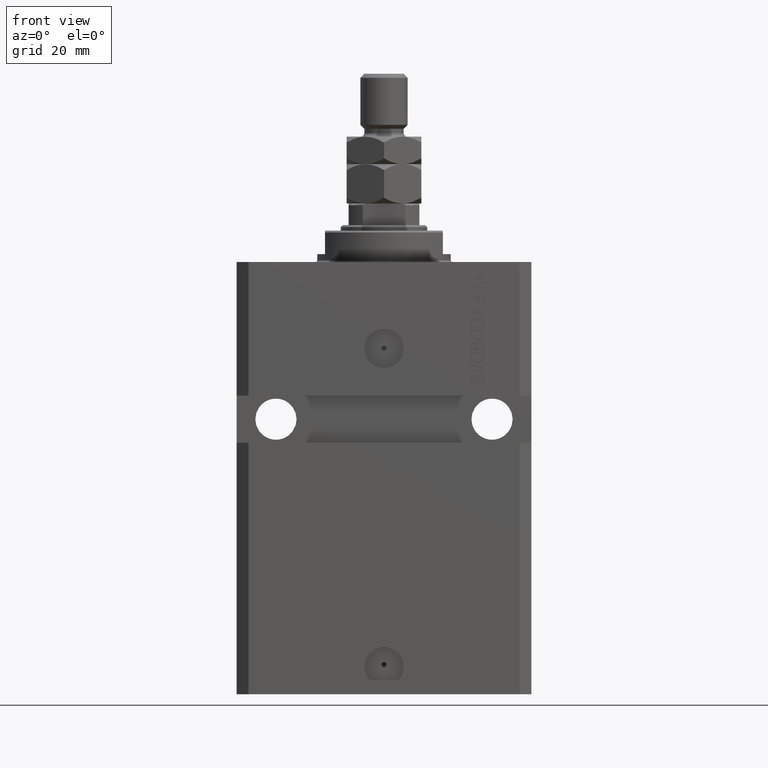
[diagram: clean part render]
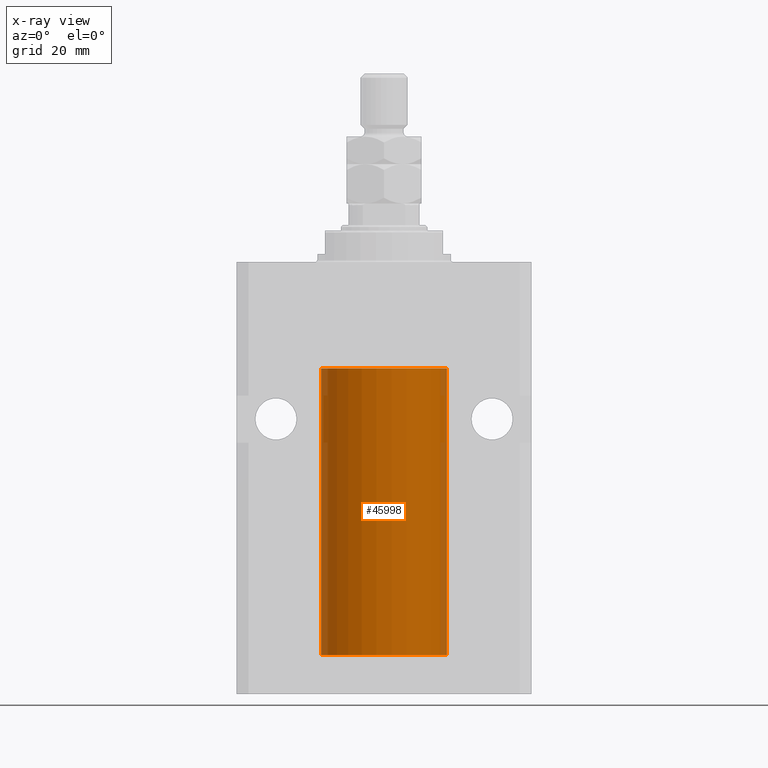
[diagram: x-ray — body ghosted, one internal face saturated and labeled with its STEP entity id]
A machine part, front view, then the same camera in x-ray: the body is ghosted and one INTERNAL B-rep face — a face not visible from any outside direction — is saturated and labeled: STEP entity #45998.
In plain terms, the highlighted cylindrical surface (partial cylindrical patch) has radius 16 mm, axis along (0, 0, 1).
Its self-contained STEP definition (entity closure, byte-faithful):
#455 = EDGE_CURVE ( 'NONE', #26120, #47132, #34312, .T. ) ;
#623 = CARTESIAN_POINT ( 'NONE',  ( 15.98778830858101685, -0.6250000000001221245, -98.00000000000000000 ) ) ;
#1171 = AXIS2_PLACEMENT_3D ( 'NONE', #20564, #21295, #28982 ) ;
#1840 = CARTESIAN_POINT ( 'NONE',  ( 15.99708487730508821, -0.3264777333248483626, -97.44266166809921970 ) ) ;
#2089 = CARTESIAN_POINT ( 'NONE',  ( 15.98778830858101685, -0.6250000000001221245, -98.00000000000000000 ) ) ;
#2118 = CARTESIAN_POINT ( 'NONE',  ( -16.00000000000013145, 3.685127046438747128E-13, -98.62500000000343903 ) ) ;
#2938 = EDGE_CURVE ( 'NONE', #43787, #46736, #38332, .T. ) ;
#3358 = VERTEX_POINT ( 'NONE', #20661 ) ;
#3389 = VECTOR ( 'NONE', #39929, 1000.000000000000000 ) ;
#4414 = CARTESIAN_POINT ( 'NONE',  ( 16.00000000000000000, 0.000000000000000000, -100.0999999999999943 ) ) ;
#4428 = CARTESIAN_POINT ( 'NONE',  ( -16.00000000000000000, 1.959434878635765131E-15, -27.10000000000000142 ) ) ;
#4446 = ORIENTED_EDGE ( 'NONE', *, *, #2938, .T. ) ;
#5146 = CARTESIAN_POINT ( 'NONE',  ( -16.00000000000000000, 1.959434878635765131E-15, -100.0999999999999943 ) ) ;
#5246 = B_SPLINE_CURVE_WITH_KNOTS ( 'NONE', 3,
 ( #2118, #39984, #9303, #6075, #21157, #36269, #12770, #27864, #9056, #24143 ),
 .UNSPECIFIED., .F., .F.,
 ( 4, 2, 2, 2, 4 ),
 ( 0.001954221322144760863, 0.002442665739568255709, 0.002931110156991750121, 0.003419554574415244966, 0.003907998991838739812 ),
 .UNSPECIFIED. ) ;
#5822 = CARTESIAN_POINT ( 'NONE',  ( -16.00000000000000000, 1.959434878635765131E-15, -100.0999999999999943 ) ) ;
#6075 = CARTESIAN_POINT ( 'NONE',  ( -15.99071965633095793, -0.5569502390237154321, -98.32709508218682970 ) ) ;
#6908 = CIRCLE ( 'NONE', #47987, 16.00000000000000000 ) ;
#7302 = CARTESIAN_POINT ( 'NONE',  ( 16.00000000000000000, 0.000000000000000000, -27.10000000000000142 ) ) ;
#7479 = DIRECTION ( 'NONE',  ( 0.000000000000000000, 0.000000000000000000, 1.000000000000000000 ) ) ;
#7560 = EDGE_CURVE ( 'NONE', #3358, #43787, #5246, .T. ) ;
#7731 = DIRECTION ( 'NONE',  ( 1.000000000000000000, 0.000000000000000000, 0.000000000000000000 ) ) ;
#8787 = EDGE_CURVE ( 'NONE', #9109, #44155, #43161, .T. ) ;
#8981 = CARTESIAN_POINT ( 'NONE',  ( 15.98778830858101685, -0.6250000000001221245, -98.00000000000000000 ) ) ;
#9056 = CARTESIAN_POINT ( 'NONE',  ( -16.00000000000000000, -0.1651602165840288794, -97.37500000000001421 ) ) ;
#9109 = VERTEX_POINT ( 'NONE', #24033 ) ;
#9252 = CARTESIAN_POINT ( 'NONE',  ( 16.00000000000000000, 0.000000000000000000, -100.0999999999999943 ) ) ;
#9303 = CARTESIAN_POINT ( 'NONE',  ( -15.99708815688950381, -0.3263115027449080552, -98.55740969198227219 ) ) ;
#10147 = CARTESIAN_POINT ( 'NONE',  ( -16.00000000000000000, 1.959434878635765131E-15, -100.0999999999999943 ) ) ;
#10883 = CIRCLE ( 'NONE', #34614, 16.00000000000000000 ) ;
#12588 = DIRECTION ( 'NONE',  ( -0.000000000000000000, -0.000000000000000000, 1.000000000000000000 ) ) ;
#12770 = CARTESIAN_POINT ( 'NONE',  ( -15.99069874693027948, -0.5575440858643423425, -97.67382425011452085 ) ) ;
#13640 = FACE_OUTER_BOUND ( 'NONE', #45057, .T. ) ;
#15102 = VECTOR ( 'NONE', #44724, 1000.000000000000000 ) ;
#16710 = VECTOR ( 'NONE', #12588, 1000.000000000000000 ) ;
#16882 = EDGE_CURVE ( 'NONE', #9109, #29149, #23501, .T. ) ;
#17905 = EDGE_CURVE ( 'NONE', #29149, #47132, #22885, .T. ) ;
#18126 = CARTESIAN_POINT ( 'NONE',  ( 0.000000000000000000, 0.000000000000000000, -27.10000000000000142 ) ) ;
#18289 = ORIENTED_EDGE ( 'NONE', *, *, #7560, .T. ) ;
#20564 = CARTESIAN_POINT ( 'NONE',  ( 0.000000000000000000, 0.000000000000000000, -100.0999999999999943 ) ) ;
#20661 = CARTESIAN_POINT ( 'NONE',  ( -16.00000000000013145, 3.685127046438747128E-13, -98.62500000000343903 ) ) ;
#20908 = DIRECTION ( 'NONE',  ( -0.000000000000000000, -0.000000000000000000, 1.000000000000000000 ) ) ;
#21157 = CARTESIAN_POINT ( 'NONE',  ( -15.98779367741636648, -0.6248626626677354912, -98.16539631985041581 ) ) ;
#21295 = DIRECTION ( 'NONE',  ( -0.000000000000000000, -0.000000000000000000, 1.000000000000000000 ) ) ;
#21871 = ORIENTED_EDGE ( 'NONE', *, *, #22080, .T. ) ;
#22080 = EDGE_CURVE ( 'NONE', #38056, #3358, #39734, .T. ) ;
#22885 = B_SPLINE_CURVE_WITH_KNOTS ( 'NONE', 3,
 ( #8981, #35226, #46370, #46608, #34976, #31264 ),
 .UNSPECIFIED., .F., .F.,
 ( 4, 2, 4 ),
 ( 0.002931623410139858662, 0.003419811200989293816, 0.003907998991838729404 ),
 .UNSPECIFIED. ) ;
#23204 = ORIENTED_EDGE ( 'NONE', *, *, #455, .F. ) ;
#23205 = CARTESIAN_POINT ( 'NONE',  ( -16.00000000000000000, -1.303459030566954747E-14, -97.37500000000000000 ) ) ;
#23501 = B_SPLINE_CURVE_WITH_KNOTS ( 'NONE', 3,
 ( #44164, #28814, #1840, #36482, #29302, #2089 ),
 .UNSPECIFIED., .F., .F.,
 ( 4, 2, 4 ),
 ( 0.001954221322144537518, 0.002442922366142198307, 0.002931623410139858662 ),
 .UNSPECIFIED. ) ;
#23970 = VECTOR ( 'NONE', #20908, 1000.000000000000000 ) ;
#24033 = CARTESIAN_POINT ( 'NONE',  ( 16.00000000000013145, 3.665532692826917502E-13, -97.37499999999657518 ) ) ;
#24143 = CARTESIAN_POINT ( 'NONE',  ( -16.00000000000000000, -1.303459030566954747E-14, -97.37500000000000000 ) ) ;
#24543 = ORIENTED_EDGE ( 'NONE', *, *, #17905, .T. ) ;
#26120 = VERTEX_POINT ( 'NONE', #4414 ) ;
#27263 = CARTESIAN_POINT ( 'NONE',  ( 16.00000000000000000, -1.835653844722709729E-15, -98.62500000000000000 ) ) ;
#27481 = ORIENTED_EDGE ( 'NONE', *, *, #16882, .T. ) ;
#27864 = CARTESIAN_POINT ( 'NONE',  ( -15.99707459521409625, -0.3269651631532106140, -97.44291848928558863 ) ) ;
#28814 = CARTESIAN_POINT ( 'NONE',  ( 16.00000000000000355, -0.1632201307031984627, -97.37499999999980105 ) ) ;
#28982 = DIRECTION ( 'NONE',  ( 1.000000000000000000, 0.000000000000000000, 0.000000000000000000 ) ) ;
#29149 = VERTEX_POINT ( 'NONE', #623 ) ;
#29302 = CARTESIAN_POINT ( 'NONE',  ( 15.98778830858102040, -0.6250000000001221245, -97.83501479319285465 ) ) ;
#29318 = CARTESIAN_POINT ( 'NONE',  ( 0.000000000000000000, 0.000000000000000000, -100.0999999999999943 ) ) ;
#30476 = ORIENTED_EDGE ( 'NONE', *, *, #34480, .T. ) ;
#31264 = CARTESIAN_POINT ( 'NONE',  ( 16.00000000000000000, -1.835653844722709729E-15, -98.62500000000000000 ) ) ;
#32303 = DIRECTION ( 'NONE',  ( 1.000000000000000000, 0.000000000000000000, 0.000000000000000000 ) ) ;
#33150 = ORIENTED_EDGE ( 'NONE', *, *, #8787, .F. ) ;
#34312 = LINE ( 'NONE', #45463, #15102 ) ;
#34480 = EDGE_CURVE ( 'NONE', #46736, #44155, #6908, .T. ) ;
#34614 = AXIS2_PLACEMENT_3D ( 'NONE', #29318, #48126, #32303 ) ;
#34976 = CARTESIAN_POINT ( 'NONE',  ( 16.00000000000000000, -0.1650734421240358518, -98.62500000000002842 ) ) ;
#34989 = EDGE_CURVE ( 'NONE', #38056, #26120, #10883, .T. ) ;
#35226 = CARTESIAN_POINT ( 'NONE',  ( 15.98778830858102040, -0.6250000000001221245, -98.16481193282328377 ) ) ;
#35353 = ORIENTED_EDGE ( 'NONE', *, *, #34989, .F. ) ;
#36269 = CARTESIAN_POINT ( 'NONE',  ( -15.98778295664474491, -0.6251369050462269872, -97.83564325457868449 ) ) ;
#36482 = CARTESIAN_POINT ( 'NONE',  ( 15.99071289786271954, -0.5571474671814620194, -97.67319665488821556 ) ) ;
#38056 = VERTEX_POINT ( 'NONE', #10147 ) ;
#38332 = LINE ( 'NONE', #5146, #16710 ) ;
#39734 = LINE ( 'NONE', #5822, #23970 ) ;
#39929 = DIRECTION ( 'NONE',  ( -0.000000000000000000, -0.000000000000000000, 1.000000000000000000 ) ) ;
#39984 = CARTESIAN_POINT ( 'NONE',  ( -16.00000000000000711, -0.1631344205875864539, -98.62500000000012790 ) ) ;
#40362 = CYLINDRICAL_SURFACE ( 'NONE', #1171, 16.00000000000000000 ) ;
#43161 = LINE ( 'NONE', #9252, #3389 ) ;
#43787 = VERTEX_POINT ( 'NONE', #23205 ) ;
#44155 = VERTEX_POINT ( 'NONE', #7302 ) ;
#44164 = CARTESIAN_POINT ( 'NONE',  ( 16.00000000000013145, 3.665532692826917502E-13, -97.37499999999657518 ) ) ;
#44724 = DIRECTION ( 'NONE',  ( -0.000000000000000000, -0.000000000000000000, 1.000000000000000000 ) ) ;
#45057 = EDGE_LOOP ( 'NONE', ( #35353, #21871, #18289, #4446, #30476, #33150, #27481, #24543, #23204 ) ) ;
#45463 = CARTESIAN_POINT ( 'NONE',  ( 16.00000000000000000, 0.000000000000000000, -100.0999999999999943 ) ) ;
#45998 = ADVANCED_FACE ( 'NONE', ( #13640 ), #40362, .F. ) ;
#46370 = CARTESIAN_POINT ( 'NONE',  ( 15.99070553365076996, -0.5573460204199470747, -98.32646897863004654 ) ) ;
#46608 = CARTESIAN_POINT ( 'NONE',  ( 15.99707785788560521, -0.3267997233067475582, -98.55715215276643448 ) ) ;
#46736 = VERTEX_POINT ( 'NONE', #4428 ) ;
#47132 = VERTEX_POINT ( 'NONE', #27263 ) ;
#47987 = AXIS2_PLACEMENT_3D ( 'NONE', #18126, #7479, #7731 ) ;
#48126 = DIRECTION ( 'NONE',  ( 0.000000000000000000, 0.000000000000000000, 1.000000000000000000 ) ) ;